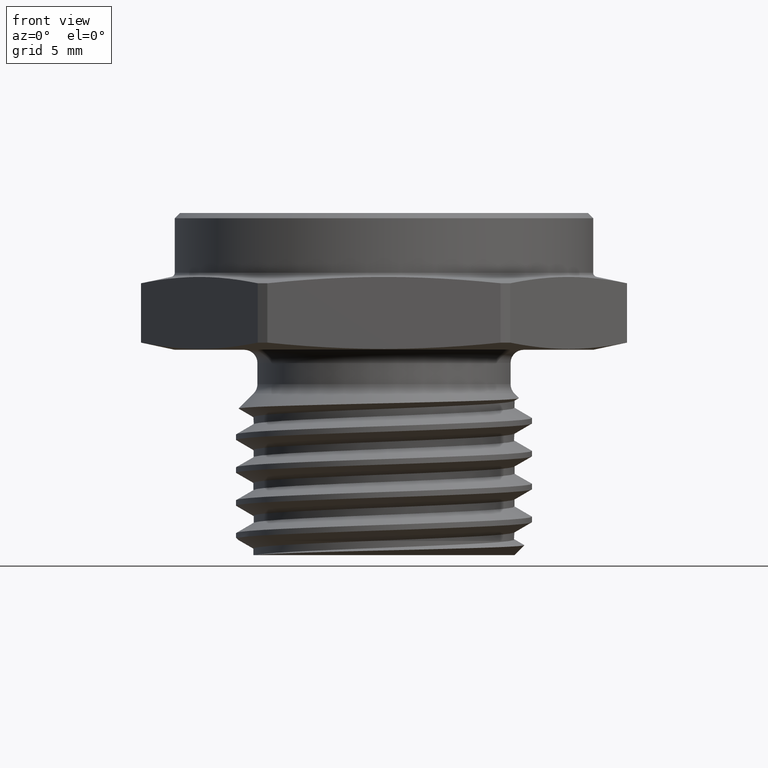
[diagram: clean part render]
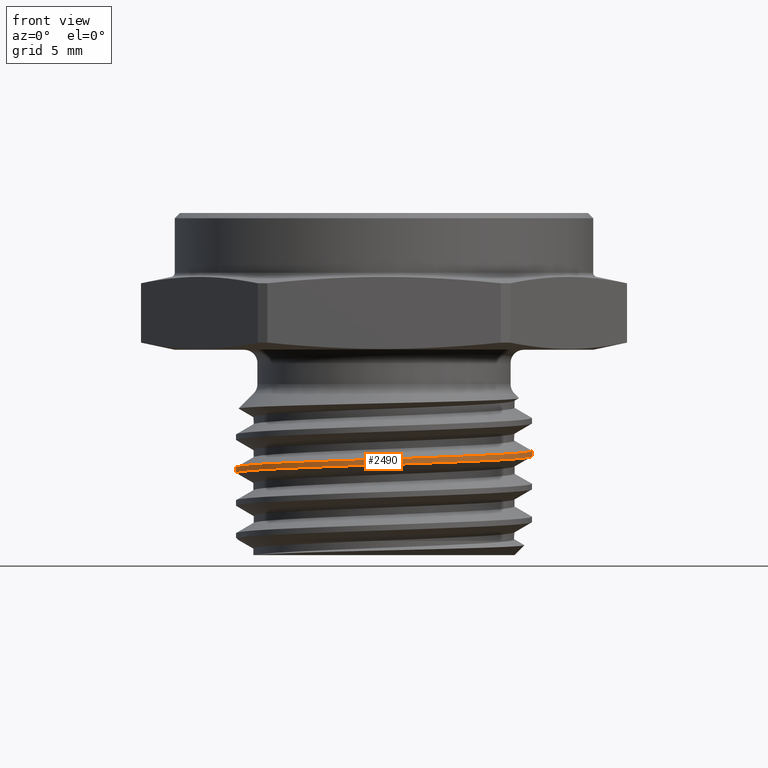
[diagram: same view with one face highlighted and labeled with its STEP entity id]
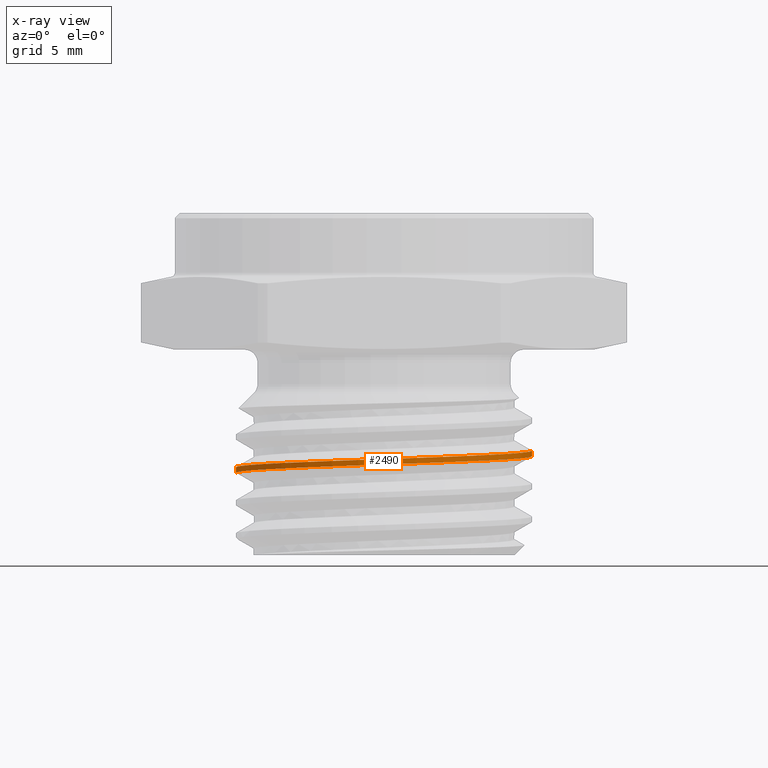
[diagram: x-ray of the same camera — body ghosted, the highlighted face saturated]
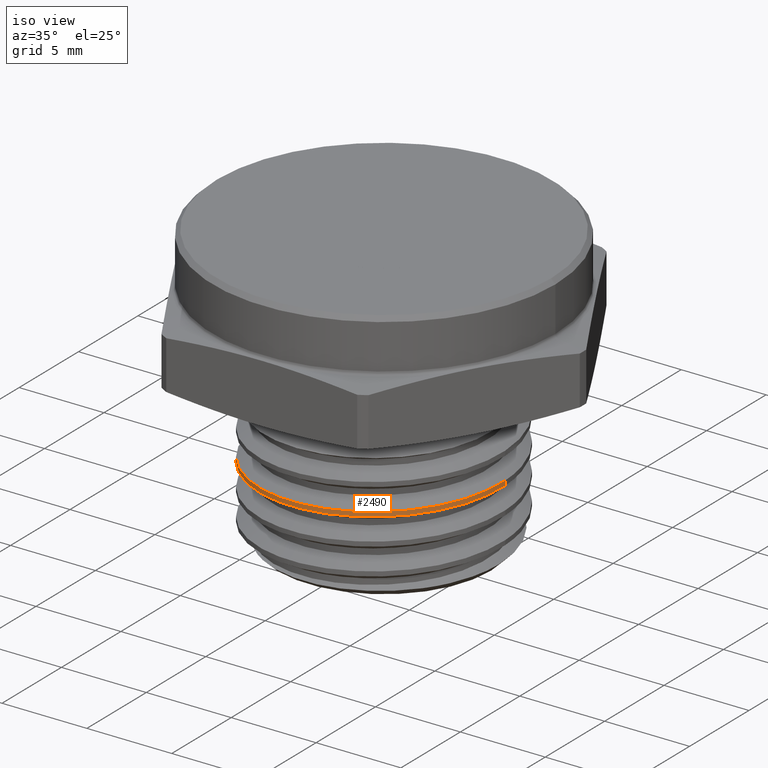
[diagram: same view with one face highlighted and labeled with its STEP entity id]
A machine part, front view. The second image highlights one B-rep face of the part: STEP entity #2490.
The next image is the same camera in x-ray: the body ghosted, the highlighted face saturated — about 0% of this face is hidden behind the body in this view.
A second angle (iso view) of the same face is appended — the face is thin or edge-on in the first view.
In plain terms, the highlighted cylindrical surface (partial cylindrical patch) has radius 7.1438 mm, axis along (-0, -0, 1).
Its self-contained STEP definition (entity closure, byte-faithful):
#89 = ORIENTED_EDGE ( 'NONE', *, *, #2192, .F. ) ;
#90 = ORIENTED_EDGE ( 'NONE', *, *, #2204, .F. ) ;
#91 = ORIENTED_EDGE ( 'NONE', *, *, #2198, .T. ) ;
#92 = ORIENTED_EDGE ( 'NONE', *, *, #2205, .T. ) ;
#206 = AXIS2_PLACEMENT_3D ( 'NONE', #1136, #1137, #1135 ) ;
#247 = VERTEX_POINT ( 'NONE', #2731 ) ;
#265 = VERTEX_POINT ( 'NONE', #2704 ) ;
#359 = VERTEX_POINT ( 'NONE', #727 ) ;
#374 = VERTEX_POINT ( 'NONE', #737 ) ;
#727 = CARTESIAN_POINT ( 'NONE',  ( 0.2812500000000000000, 8.116393866853513800E-017, -0.1920517395986001400 ) ) ;
#737 = CARTESIAN_POINT ( 'NONE',  ( -0.2812500000000000000, -1.155979320171571700E-016, -0.2233017395986001700 ) ) ;
#1135 = DIRECTION ( 'NONE',  ( 1.000000000000000000, 0.0000000000000000000, 0.0000000000000000000 ) ) ;
#1136 = CARTESIAN_POINT ( 'NONE',  ( 0.0000000000000000000, 0.0000000000000000000, -0.3900000000000000100 ) ) ;
#1137 = DIRECTION ( 'NONE',  ( -0.0000000000000000000, -0.0000000000000000000, 1.000000000000000000 ) ) ;
#1279 = CARTESIAN_POINT ( 'NONE',  ( -0.2812500000000000600, 3.444319122601931000E-017, -0.3900000000000000100 ) ) ;
#1290 = DIRECTION ( 'NONE',  ( -0.0000000000000000000, -0.0000000000000000000, 1.000000000000000000 ) ) ;
#1327 = CARTESIAN_POINT ( 'NONE',  ( 0.2812500000000000600, 0.0000000000000000000, -0.3900000000000000100 ) ) ;
#1328 = DIRECTION ( 'NONE',  ( -0.0000000000000000000, -0.0000000000000000000, 1.000000000000000000 ) ) ;
#1364 = CARTESIAN_POINT ( 'NONE',  ( 0.2812500000000000000, -0.1164968999536188400, -0.2064062321618985700 ) ) ;
#1365 = CARTESIAN_POINT ( 'NONE',  ( 0.2812499999999999400, 8.116003072549823300E-017, -0.2024999979162771500 ) ) ;
#1375 = CARTESIAN_POINT ( 'NONE',  ( 0.2812499999997584200, -0.1164968999538605900, -0.1959579738442330500 ) ) ;
#1376 = CARTESIAN_POINT ( 'NONE',  ( 0.2812500000000000000, 8.116393866853513800E-017, -0.1920517395986001400 ) ) ;
#1377 = CARTESIAN_POINT ( 'NONE',  ( 0.1988745842865448400, -0.1988729801276532300, -0.2103124598819326200 ) ) ;
#1378 = CARTESIAN_POINT ( 'NONE',  ( 0.1164986987281159000, -0.2812495301504512900, -0.2142187098819326200 ) ) ;
#1379 = CARTESIAN_POINT ( 'NONE',  ( 1.134311630388287200E-006, -0.2812499999977125500, -0.2181249598819326200 ) ) ;
#1380 = CARTESIAN_POINT ( 'NONE',  ( -0.1164964301048551400, -0.2812504698449738700, -0.2220312098819326500 ) ) ;
#1381 = CARTESIAN_POINT ( 'NONE',  ( -0.1988729801276532300, -0.1988745842865448400, -0.2259374598819325900 ) ) ;
#1382 = CARTESIAN_POINT ( 'NONE',  ( -0.2812495301504512900, -0.1164986987281159500, -0.2298437098819326200 ) ) ;
#1383 = CARTESIAN_POINT ( 'NONE',  ( -0.2812499999977125500, -1.134311630405508700E-006, -0.2337499598819326200 ) ) ;
#1384 = CARTESIAN_POINT ( 'NONE',  ( -0.2812500000000000000, -5.671558145937019800E-007, -0.2337499788990890800 ) ) ;
#1385 = CARTESIAN_POINT ( 'NONE',  ( -0.2812499999999999400, -1.156013189011224800E-016, -0.2337499979162771800 ) ) ;
#1388 = CARTESIAN_POINT ( 'NONE',  ( 0.1988745842865448400, -0.1988729801276532300, -0.1998642015642555500 ) ) ;
#1389 = CARTESIAN_POINT ( 'NONE',  ( 0.1164986987281159500, -0.2812495301504513400, -0.2037704515642555500 ) ) ;
#1390 = CARTESIAN_POINT ( 'NONE',  ( 1.134311630388287500E-006, -0.2812499999977126100, -0.2076767015642555800 ) ) ;
#1391 = CARTESIAN_POINT ( 'NONE',  ( -0.1164964301048551400, -0.2812504698449739300, -0.2115829515642555500 ) ) ;
#1392 = CARTESIAN_POINT ( 'NONE',  ( -0.1988729801276532300, -0.1988745842865448400, -0.2154892015642555800 ) ) ;
#1393 = CARTESIAN_POINT ( 'NONE',  ( -0.2812495301504513400, -0.1164986987281159500, -0.2193954515642555500 ) ) ;
#1394 = CARTESIAN_POINT ( 'NONE',  ( -0.2812499999977126100, -1.134311630405509100E-006, -0.2233017015642555500 ) ) ;
#1395 = CARTESIAN_POINT ( 'NONE',  ( -0.2812500000000000000, -5.671558018796343100E-007, -0.2233017205814124300 ) ) ;
#1396 = CARTESIAN_POINT ( 'NONE',  ( -0.2812500000000000000, -1.155979320171571700E-016, -0.2233017395986001700 ) ) ;
#2047 =( BOUNDED_CURVE ( )  B_SPLINE_CURVE ( 2, ( #1365, #1364, #1377, #1378, #1379, #1380, #1381, #1382, #1383, #1384, #1385 ),
 .UNSPECIFIED., .F., .T. ) 
 B_SPLINE_CURVE_WITH_KNOTS ( ( 3, 2, 2, 2, 2, 3 ),
 ( 0.4285715226697760500, 0.4464285714285714500, 0.4642857142857143000, 0.4821428571428571500, 0.5000000000000000000, 0.5000000940983475600 ),
 .UNSPECIFIED. ) 
 CURVE ( )  GEOMETRIC_REPRESENTATION_ITEM ( )  RATIONAL_B_SPLINE_CURVE ( ( 0.9999991977694852000, 0.9238799336286578300, 1.000000000000000000, 0.9238795325112867400, 1.000000000000000000, 0.9238795325112867400, 1.000000000000000000, 0.9238795325112867400, 1.000000000000000000, 0.9999995988826284600, 0.9999991977694842000 ) ) 
 REPRESENTATION_ITEM ( '' )  );
#2048 =( BOUNDED_CURVE ( )  B_SPLINE_CURVE ( 2, ( #1376, #1375, #1388, #1389, #1390, #1391, #1392, #1393, #1394, #1395, #1396 ),
 .UNSPECIFIED., .F., .F. ) 
 B_SPLINE_CURVE_WITH_KNOTS ( ( 3, 2, 2, 2, 2, 3 ),
 ( 0.2857143798126815500, 0.3035714285714286000, 0.3214285714285715100, 0.3392857142857143000, 0.3571428571428572100, 0.3571429512412068700 ),
 .UNSPECIFIED. ) 
 CURVE ( )  GEOMETRIC_REPRESENTATION_ITEM ( )  RATIONAL_B_SPLINE_CURVE ( ( 0.9999991977690725300, 0.9238799336288641100, 1.000000000000000000, 0.9238795325112867400, 1.000000000000000000, 0.9238795325112867400, 1.000000000000000000, 0.9238795325112867400, 1.000000000000000000, 0.9999995988826194700, 0.9999991977694662200 ) ) 
 REPRESENTATION_ITEM ( '' )  );
#2100 = LINE ( 'NONE', #1279, #2104 ) ;
#2104 = VECTOR ( 'NONE', #1290, 39.37007874015748100 ) ;
#2110 = LINE ( 'NONE', #1327, #2111 ) ;
#2111 = VECTOR ( 'NONE', #1328, 39.37007874015748100 ) ;
#2192 = EDGE_CURVE ( 'NONE', #247, #374, #2100, .T. ) ;
#2198 = EDGE_CURVE ( 'NONE', #265, #359, #2110, .T. ) ;
#2204 = EDGE_CURVE ( 'NONE', #265, #247, #2047, .T. ) ;
#2205 = EDGE_CURVE ( 'NONE', #359, #374, #2048, .T. ) ;
#2442 = FACE_OUTER_BOUND ( 'NONE', #2767, .T. ) ;
#2447 = CYLINDRICAL_SURFACE ( 'NONE', #206, 0.2812500000000000600 ) ;
#2490 = ADVANCED_FACE ( 'NONE', ( #2442 ), #2447, .T. ) ;
#2704 = CARTESIAN_POINT ( 'NONE',  ( 0.2812499999999999400, 8.116003072549823300E-017, -0.2024999979162771500 ) ) ;
#2731 = CARTESIAN_POINT ( 'NONE',  ( -0.2812499999999999400, -1.156013189011224800E-016, -0.2337499979162771800 ) ) ;
#2767 = EDGE_LOOP ( 'NONE', ( #89, #90, #91, #92 ) ) ;